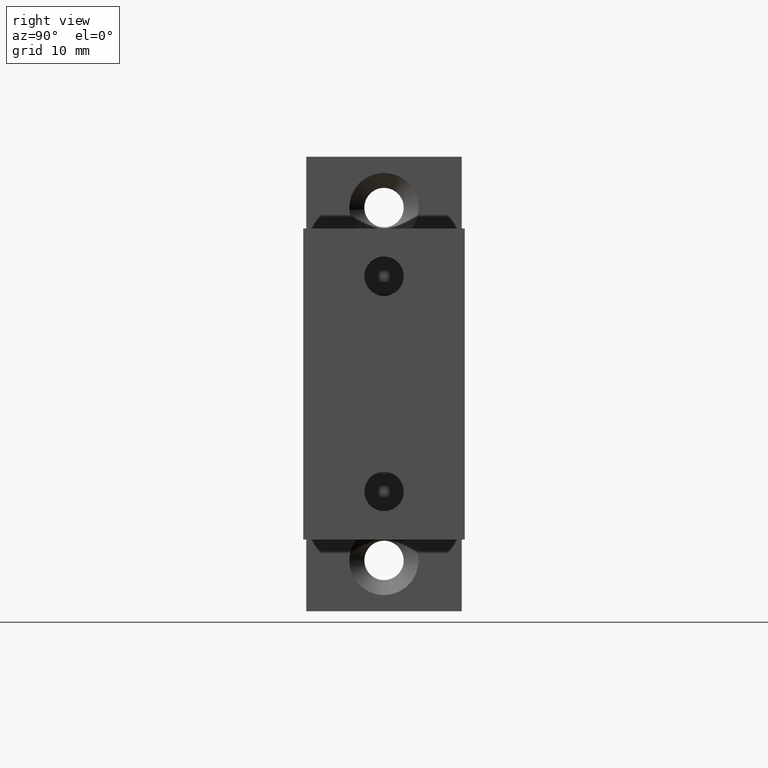
[diagram: clean part render]
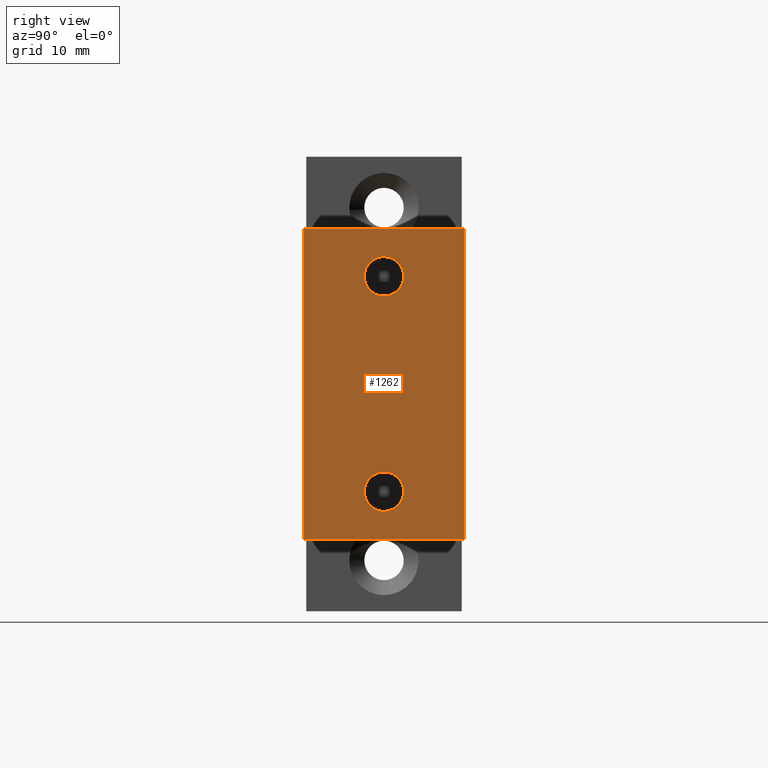
[diagram: same view with one face highlighted and labeled with its STEP entity id]
A machine part, right view. The second image highlights one B-rep face of the part: STEP entity #1262.
In plain terms, the highlighted face is a freeform B-spline surface patch.
Its self-contained STEP definition (entity closure, byte-faithful):
#70=CARTESIAN_POINT('',(45.974221401069499,0.0,-7.349999999999999));
#71=VERTEX_POINT('',#70);
#72=CARTESIAN_POINT('',(45.974221401069499,-0.941886383611050,-7.645249085489108));
#73=VERTEX_POINT('',#72);
#74=CARTESIAN_POINT('',(45.974221401069499,0.0,-7.349999999999999));
#75=CARTESIAN_POINT('',(45.974221401069499,-0.517218424148629,-7.349999999999998));
#76=CARTESIAN_POINT('',(45.974221401069506,-0.941886383611050,-7.645249085489108));
#84=(BOUNDED_CURVE()B_SPLINE_CURVE(2,(#74,#75,#76),.UNSPECIFIED.,.F.,.U.)B_SPLINE_CURVE_WITH_KNOTS((3,3),(0.500000000000000,0.598090608939203),.UNSPECIFIED.)CURVE()GEOMETRIC_REPRESENTATION_ITEM()RATIONAL_B_SPLINE_CURVE((1.0,0.885079703249701,0.860340221601088))REPRESENTATION_ITEM(''));
#85=EDGE_CURVE('',#71,#73,#84,.T.);
#158=CARTESIAN_POINT('',(45.974221401069499,-1.644913600655519,-8.870542491996421));
#159=VERTEX_POINT('',#158);
#165=CARTESIAN_POINT('',(45.974221401069499,0.0,-10.650000000000000));
#166=VERTEX_POINT('',#165);
#167=CARTESIAN_POINT('',(45.974221401069499,-1.644913600655519,-8.870542491996421));
#168=CARTESIAN_POINT('',(45.974221401069506,-1.650000000000000,-8.935171323384468));
#169=CARTESIAN_POINT('',(45.974221401069499,-1.650000000000000,-9.0));
#170=CARTESIAN_POINT('',(45.974221401069499,-1.649999999999999,-10.650000000000000));
#171=CARTESIAN_POINT('',(45.974221401069499,0.0,-10.650000000000000));
#179=(BOUNDED_CURVE()B_SPLINE_CURVE(2,(#167,#168,#169,#170,#171),.UNSPECIFIED.,.F.,.U.)B_SPLINE_CURVE_WITH_KNOTS((3,2,3),(0.736331300621797,0.750000000000000,1.0),.UNSPECIFIED.)CURVE()GEOMETRIC_REPRESENTATION_ITEM()RATIONAL_B_SPLINE_CURVE((0.969723356148921,0.983986122568498,1.0,0.707106781186548,1.0))REPRESENTATION_ITEM(''));
#180=EDGE_CURVE('',#159,#166,#179,.T.);
#182=CARTESIAN_POINT('',(45.974221401069499,0.0,-10.650000000000000));
#183=CARTESIAN_POINT('',(45.974221401069499,1.649999999999999,-10.650000000000000));
#184=CARTESIAN_POINT('',(45.974221401069499,1.650000000000000,-9.0));
#185=CARTESIAN_POINT('',(45.974221401069499,1.649999999999999,-7.349999999999999));
#186=CARTESIAN_POINT('',(45.974221401069499,0.0,-7.349999999999999));
#194=(BOUNDED_CURVE()B_SPLINE_CURVE(2,(#182,#183,#184,#185,#186),.UNSPECIFIED.,.F.,.U.)B_SPLINE_CURVE_WITH_KNOTS((3,2,3),(0.0,0.250000000000000,0.500000000000000),.UNSPECIFIED.)CURVE()GEOMETRIC_REPRESENTATION_ITEM()RATIONAL_B_SPLINE_CURVE((1.0,0.707106781186548,1.0,0.707106781186548,1.0))REPRESENTATION_ITEM(''));
#195=EDGE_CURVE('',#166,#71,#194,.T.);
#214=CARTESIAN_POINT('',(45.974221401069492,-0.941886383611050,-7.645249085489108));
#215=CARTESIAN_POINT('',(45.974221401069485,-1.583593269739807,-8.091393813528915));
#216=CARTESIAN_POINT('',(45.974221401069499,-1.644913600655518,-8.870542491996421));
#224=(BOUNDED_CURVE()B_SPLINE_CURVE(2,(#214,#215,#216),.UNSPECIFIED.,.F.,.U.)B_SPLINE_CURVE_WITH_KNOTS((3,3),(0.598090608939204,0.736331300621796),.UNSPECIFIED.)CURVE()GEOMETRIC_REPRESENTATION_ITEM()RATIONAL_B_SPLINE_CURVE((0.860340221601087,0.825474467458480,0.969723356148920))REPRESENTATION_ITEM(''));
#225=EDGE_CURVE('',#73,#159,#224,.T.);
#418=CARTESIAN_POINT('',(45.974221401069499,-1.646922417390807,8.899269909681269));
#419=VERTEX_POINT('',#418);
#425=CARTESIAN_POINT('',(45.974221401069499,0.0,7.349999999999999));
#426=VERTEX_POINT('',#425);
#427=CARTESIAN_POINT('',(45.974221401069499,0.0,7.349999999999999));
#428=CARTESIAN_POINT('',(45.974221401069499,-1.552165010231571,7.349999999999999));
#429=CARTESIAN_POINT('',(45.974221401069499,-1.646922417390807,8.899269909681269));
#437=(BOUNDED_CURVE()B_SPLINE_CURVE(2,(#427,#428,#429),.UNSPECIFIED.,.F.,.U.)B_SPLINE_CURVE_WITH_KNOTS((3,3),(0.500000000000000,0.739332962223902),.UNSPECIFIED.)CURVE()GEOMETRIC_REPRESENTATION_ITEM()RATIONAL_B_SPLINE_CURVE((1.0,0.719603993304332,0.976072041634481))REPRESENTATION_ITEM(''));
#438=EDGE_CURVE('',#426,#419,#437,.T.);
#440=CARTESIAN_POINT('',(45.974221401069499,0.580169657770712,7.455363095027762));
#441=VERTEX_POINT('',#440);
#442=CARTESIAN_POINT('',(45.974221401069499,0.580169657770712,7.455363095027762));
#443=CARTESIAN_POINT('',(45.974221401069499,0.299652187037320,7.349999999999999));
#444=CARTESIAN_POINT('',(45.974221401069499,0.0,7.349999999999999));
#452=(BOUNDED_CURVE()B_SPLINE_CURVE(2,(#442,#443,#444),.UNSPECIFIED.,.F.,.U.)B_SPLINE_CURVE_WITH_KNOTS((3,3),(0.440284170893875,0.500000000000000),.UNSPECIFIED.)CURVE()GEOMETRIC_REPRESENTATION_ITEM()RATIONAL_B_SPLINE_CURVE((0.893499554629604,0.930038554395972,1.0))REPRESENTATION_ITEM(''));
#453=EDGE_CURVE('',#441,#426,#452,.T.);
#503=CARTESIAN_POINT('',(45.974221401069499,0.0,10.650000000000000));
#504=VERTEX_POINT('',#503);
#505=CARTESIAN_POINT('',(45.974221401069499,0.0,10.650000000000000));
#506=CARTESIAN_POINT('',(45.974221401069499,1.649999999999999,10.650000000000000));
#507=CARTESIAN_POINT('',(45.974221401069499,1.650000000000000,9.0));
#508=CARTESIAN_POINT('',(45.974221401069499,1.650000000000001,7.857194167143121));
#509=CARTESIAN_POINT('',(45.974221401069499,0.580169657770712,7.455363095027762));
#517=(BOUNDED_CURVE()B_SPLINE_CURVE(2,(#505,#506,#507,#508,#509),.UNSPECIFIED.,.F.,.U.)B_SPLINE_CURVE_WITH_KNOTS((3,2,3),(0.0,0.250000000000000,0.440284170893875),.UNSPECIFIED.)CURVE()GEOMETRIC_REPRESENTATION_ITEM()RATIONAL_B_SPLINE_CURVE((1.0,0.707106781186548,1.0,0.777068226790576,0.893499554629604))REPRESENTATION_ITEM(''));
#518=EDGE_CURVE('',#504,#441,#517,.T.);
#520=CARTESIAN_POINT('',(45.974221401069499,-1.646922417390807,8.899269909681269));
#521=CARTESIAN_POINT('',(45.974221401069514,-1.650000000000000,8.949587940470869));
#522=CARTESIAN_POINT('',(45.974221401069499,-1.650000000000000,9.0));
#523=CARTESIAN_POINT('',(45.974221401069499,-1.649999999999999,10.650000000000000));
#524=CARTESIAN_POINT('',(45.974221401069499,0.0,10.650000000000000));
#532=(BOUNDED_CURVE()B_SPLINE_CURVE(2,(#520,#521,#522,#523,#524),.UNSPECIFIED.,.F.,.U.)B_SPLINE_CURVE_WITH_KNOTS((3,2,3),(0.739332962223903,0.750000000000000,1.0),.UNSPECIFIED.)CURVE()GEOMETRIC_REPRESENTATION_ITEM()RATIONAL_B_SPLINE_CURVE((0.976072041634484,0.987502787882217,1.0,0.707106781186548,1.0))REPRESENTATION_ITEM(''));
#533=EDGE_CURVE('',#419,#504,#532,.T.);
#1164=CARTESIAN_POINT('',(45.974221401069499,-6.750000000000000,13.0));
#1165=VERTEX_POINT('',#1164);
#1180=CARTESIAN_POINT('',(45.974221401069499,-6.750000000000000,-13.0));
#1181=VERTEX_POINT('',#1180);
#1187=CARTESIAN_POINT('',(45.974221401069499,-6.750000000000000,-13.0));
#1188=CARTESIAN_POINT('',(45.974221401069499,-6.750000000000000,13.0));
#1189=QUASI_UNIFORM_CURVE('',1,(#1187,#1188),.UNSPECIFIED.,.F.,.U.);
#1190=EDGE_CURVE('',#1181,#1165,#1189,.T.);
#1200=CARTESIAN_POINT('',(45.974221401069499,6.750000000000150,13.0));
#1201=VERTEX_POINT('',#1200);
#1209=CARTESIAN_POINT('',(45.974221401069499,6.750000000000150,-13.0));
#1210=VERTEX_POINT('',#1209);
#1211=CARTESIAN_POINT('',(45.974221401069499,6.750000000000150,-13.0));
#1212=CARTESIAN_POINT('',(45.974221401069499,6.750000000000150,13.0));
#1213=QUASI_UNIFORM_CURVE('',1,(#1211,#1212),.UNSPECIFIED.,.F.,.U.);
#1214=EDGE_CURVE('',#1210,#1201,#1213,.T.);
#1231=CARTESIAN_POINT('',(45.974221401069499,-7.424324973834387,14.298699949606959));
#1232=CARTESIAN_POINT('',(45.974221401069499,-7.424324973834387,-14.298700646981301));
#1233=CARTESIAN_POINT('',(45.974221401069499,7.424325335932754,14.298699949606959));
#1234=CARTESIAN_POINT('',(45.974221401069499,7.424325335932754,-14.298700646981301));
#1235=B_SPLINE_SURFACE_WITH_KNOTS('',1,1,((#1231,#1233),(#1232,#1234)),.UNSPECIFIED.,.F.,.F.,.U.,(2,2),(2,2),(0.0,28.597400596588258),(0.0,14.848650309767139),.UNSPECIFIED.);
#1236=ORIENTED_EDGE('',*,*,#1190,.F.);
#1237=CARTESIAN_POINT('',(45.974221401069499,6.750000000000150,-13.0));
#1238=CARTESIAN_POINT('',(45.974221401069499,-6.750000000000000,-13.0));
#1239=QUASI_UNIFORM_CURVE('',1,(#1237,#1238),.UNSPECIFIED.,.F.,.U.);
#1240=EDGE_CURVE('',#1210,#1181,#1239,.T.);
#1241=ORIENTED_EDGE('',*,*,#1240,.F.);
#1242=ORIENTED_EDGE('',*,*,#1214,.T.);
#1243=CARTESIAN_POINT('',(45.974221401069499,6.750000000000150,13.0));
#1244=CARTESIAN_POINT('',(45.974221401069499,-6.750000000000000,13.0));
#1245=QUASI_UNIFORM_CURVE('',1,(#1243,#1244),.UNSPECIFIED.,.F.,.U.);
#1246=EDGE_CURVE('',#1201,#1165,#1245,.T.);
#1247=ORIENTED_EDGE('',*,*,#1246,.T.);
#1248=EDGE_LOOP('',(#1236,#1241,#1242,#1247));
#1249=FACE_OUTER_BOUND('',#1248,.T.);
#1250=ORIENTED_EDGE('',*,*,#195,.F.);
#1251=ORIENTED_EDGE('',*,*,#180,.F.);
#1252=ORIENTED_EDGE('',*,*,#225,.F.);
#1253=ORIENTED_EDGE('',*,*,#85,.F.);
#1254=EDGE_LOOP('',(#1250,#1251,#1252,#1253));
#1255=FACE_BOUND('',#1254,.T.);
#1256=ORIENTED_EDGE('',*,*,#438,.T.);
#1257=ORIENTED_EDGE('',*,*,#533,.T.);
#1258=ORIENTED_EDGE('',*,*,#518,.T.);
#1259=ORIENTED_EDGE('',*,*,#453,.T.);
#1260=EDGE_LOOP('',(#1256,#1257,#1258,#1259));
#1261=FACE_BOUND('',#1260,.T.);
#1262=ADVANCED_FACE('',(#1249,#1255,#1261),#1235,.T.);